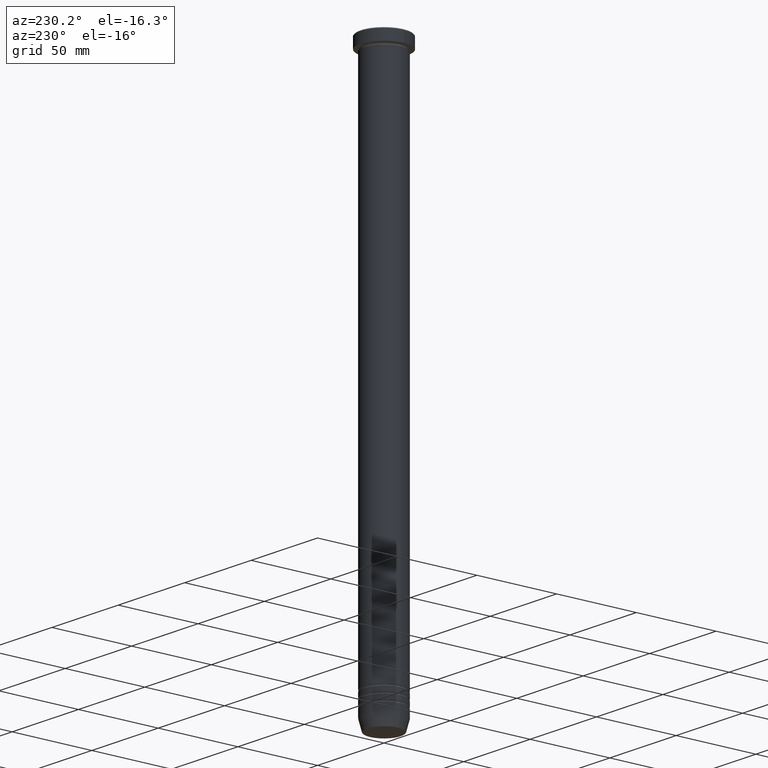
[diagram: clean part render]
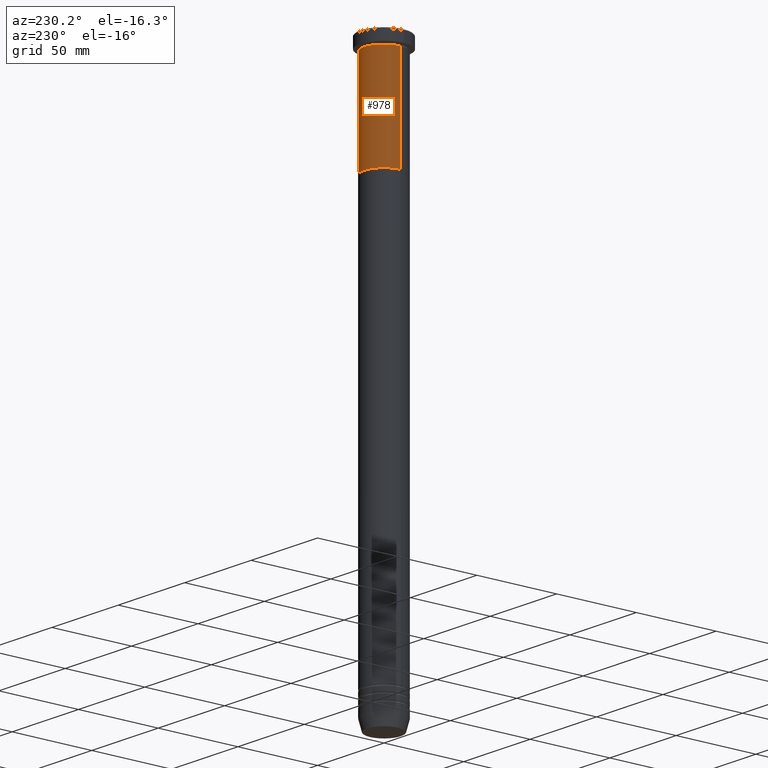
[diagram: same view with one face highlighted and labeled with its STEP entity id]
A machine part, auxiliary view. The second image highlights one B-rep face of the part: STEP entity #978.
In plain terms, the highlighted cylindrical surface (edge-blend (fillet) strip) has radius 12.5 mm, axis along (-0, -0, 1).
Its self-contained STEP definition (entity closure, byte-faithful):
#7 = DIRECTION ( 'NONE',  ( -0.000000000000000000, -0.000000000000000000, 1.000000000000000000 ) ) ;
#13 = DIRECTION ( 'NONE',  ( 1.000000000000000000, 0.000000000000000000, 0.000000000000000000 ) ) ;
#49 = ORIENTED_EDGE ( 'NONE', *, *, #932, .T. ) ;
#55 = VERTEX_POINT ( 'NONE', #410 ) ;
#82 = DIRECTION ( 'NONE',  ( 1.000000000000000000, 0.000000000000000000, 0.000000000000000000 ) ) ;
#97 = ORIENTED_EDGE ( 'NONE', *, *, #602, .T. ) ;
#114 = DIRECTION ( 'NONE',  ( -0.000000000000000000, -0.000000000000000000, 1.000000000000000000 ) ) ;
#133 = DIRECTION ( 'NONE',  ( -0.000000000000000000, -0.000000000000000000, 1.000000000000000000 ) ) ;
#158 = ORIENTED_EDGE ( 'NONE', *, *, #762, .F. ) ;
#190 = CYLINDRICAL_SURFACE ( 'NONE', #500, 12.50000000000000000 ) ;
#210 = EDGE_LOOP ( 'NONE', ( #97, #49, #158, #612 ) ) ;
#227 = DIRECTION ( 'NONE',  ( 1.000000000000000000, 0.000000000000000000, 0.000000000000000000 ) ) ;
#256 = VERTEX_POINT ( 'NONE', #394 ) ;
#310 = DIRECTION ( 'NONE',  ( -0.000000000000000000, -0.000000000000000000, 1.000000000000000000 ) ) ;
#357 = CARTESIAN_POINT ( 'NONE',  ( 12.50000000000000000, 0.000000000000000000, -70.00000000000000000 ) ) ;
#367 = VECTOR ( 'NONE', #7, 1000.000000000000000 ) ;
#378 = CARTESIAN_POINT ( 'NONE',  ( 12.50000000000000000, 0.000000000000000000, -8.000000000000000000 ) ) ;
#394 = CARTESIAN_POINT ( 'NONE',  ( -12.50000000000000000, 1.530808498934191521E-15, -8.000000000000000000 ) ) ;
#410 = CARTESIAN_POINT ( 'NONE',  ( -12.50000000000000000, 1.530808498934191521E-15, -70.00000000000000000 ) ) ;
#411 = LINE ( 'NONE', #741, #643 ) ;
#500 = AXIS2_PLACEMENT_3D ( 'NONE', #916, #752, #13 ) ;
#503 = LINE ( 'NONE', #912, #367 ) ;
#511 = VERTEX_POINT ( 'NONE', #357 ) ;
#592 = VERTEX_POINT ( 'NONE', #378 ) ;
#602 = EDGE_CURVE ( 'NONE', #511, #55, #670, .T. ) ;
#612 = ORIENTED_EDGE ( 'NONE', *, *, #958, .F. ) ;
#621 = AXIS2_PLACEMENT_3D ( 'NONE', #945, #133, #227 ) ;
#643 = VECTOR ( 'NONE', #114, 1000.000000000000000 ) ;
#670 = CIRCLE ( 'NONE', #621, 12.50000000000000000 ) ;
#739 = CIRCLE ( 'NONE', #880, 12.50000000000000000 ) ;
#741 = CARTESIAN_POINT ( 'NONE',  ( -12.50000000000000000, 1.530808498934191521E-15, 0.000000000000000000 ) ) ;
#752 = DIRECTION ( 'NONE',  ( -0.000000000000000000, -0.000000000000000000, 1.000000000000000000 ) ) ;
#762 = EDGE_CURVE ( 'NONE', #592, #256, #739, .T. ) ;
#832 = FACE_OUTER_BOUND ( 'NONE', #210, .T. ) ;
#880 = AXIS2_PLACEMENT_3D ( 'NONE', #886, #310, #82 ) ;
#886 = CARTESIAN_POINT ( 'NONE',  ( 0.000000000000000000, 0.000000000000000000, -8.000000000000000000 ) ) ;
#912 = CARTESIAN_POINT ( 'NONE',  ( 12.50000000000000000, 0.000000000000000000, 0.000000000000000000 ) ) ;
#916 = CARTESIAN_POINT ( 'NONE',  ( 0.000000000000000000, 0.000000000000000000, 0.000000000000000000 ) ) ;
#932 = EDGE_CURVE ( 'NONE', #55, #256, #411, .T. ) ;
#945 = CARTESIAN_POINT ( 'NONE',  ( 0.000000000000000000, 0.000000000000000000, -70.00000000000000000 ) ) ;
#958 = EDGE_CURVE ( 'NONE', #511, #592, #503, .T. ) ;
#978 = ADVANCED_FACE ( 'NONE', ( #832 ), #190, .T. ) ;